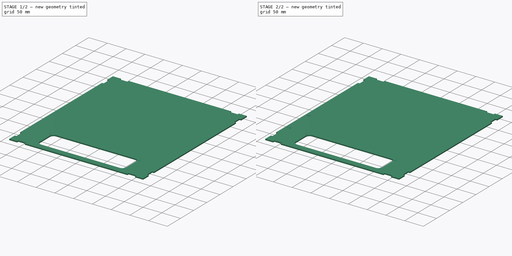
[diagram: build sequence overview — one tinted view per stage of 2, left to right]
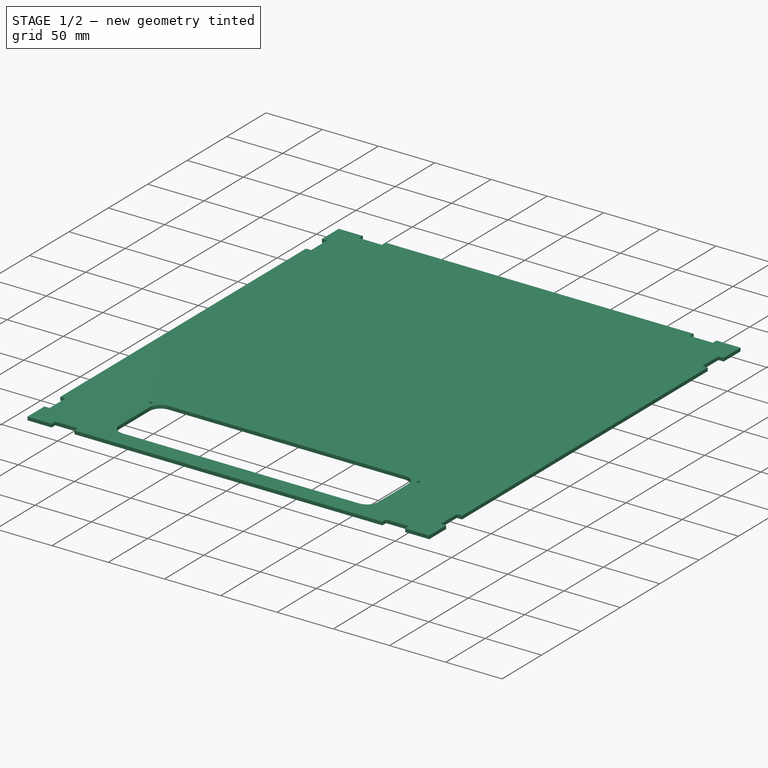
[diagram: stage 1 of 2 — iso view after this stage's code; geometry added in this stage tinted green]
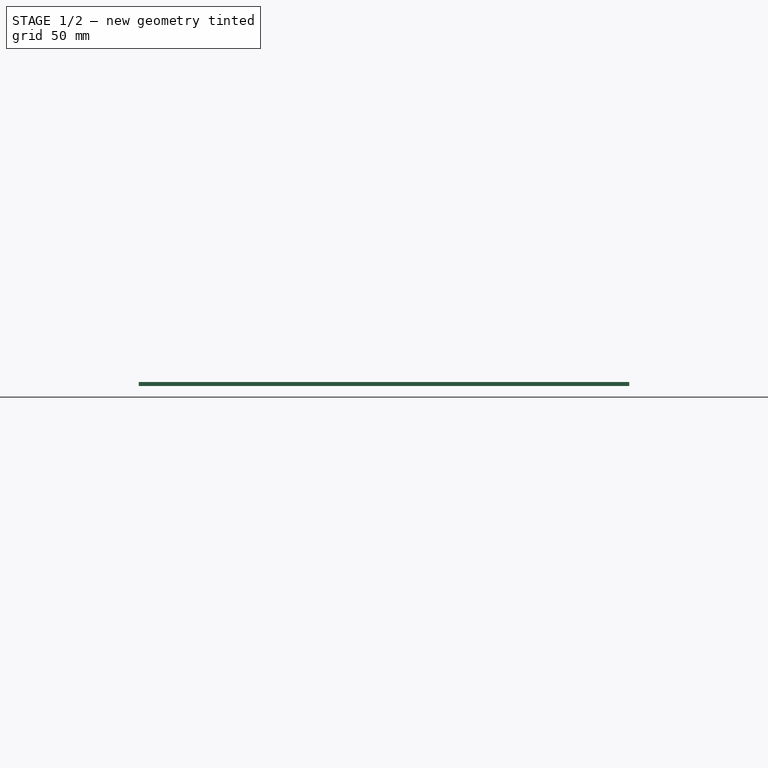
[diagram: stage 1 of 2 — front view after this stage's code; geometry added in this stage tinted green]
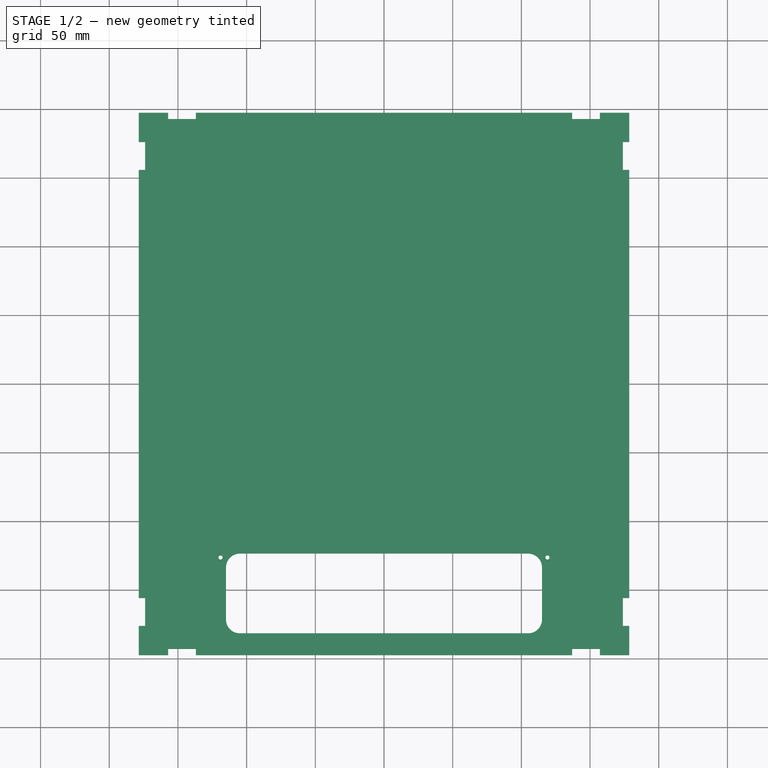
[diagram: stage 1 of 2 — top view after this stage's code; geometry added in this stage tinted green]
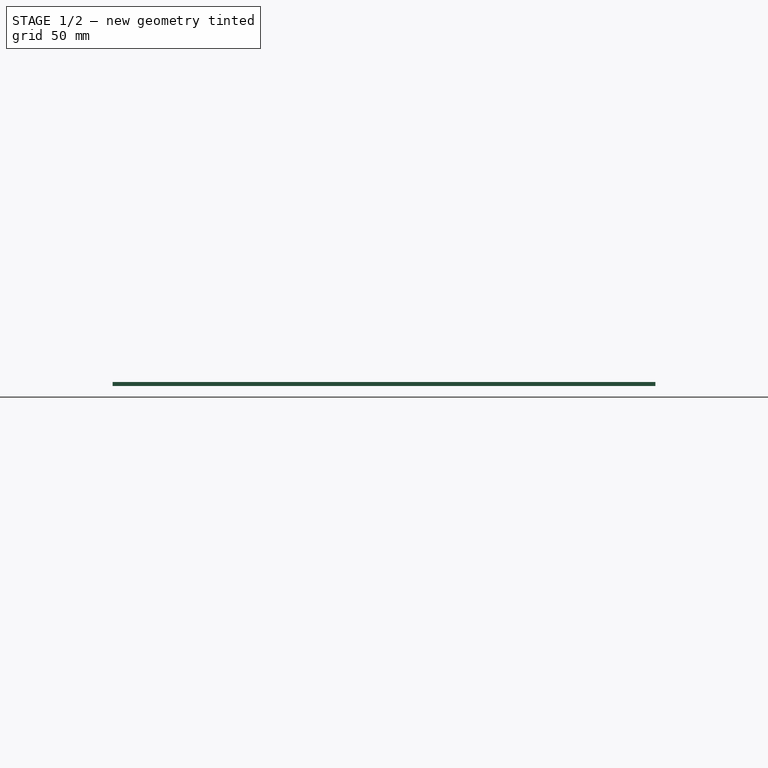
[diagram: stage 1 of 2 — right view after this stage's code; geometry added in this stage tinted green]
FCSTD DOCUMENT  (FreeCAD 0.19R24366 (Git))
Label: ri-cover-new
License: All rights reserved
LicenseURL: http://en.wikipedia.org/wiki/All_rights_reserved
objects: Sketcher::SketchObject×3, PartDesign::Pad×1, PartDesign::Pocket×1, PartDesign::Body×1, Part::Part2DObjectPython×1
note: 9 computed .brp shape members not serialized (recipe doc carries the construction recipe); baked Part::Feature solids carry a one-line shape summary decoded from their .brp

FEATURE [Sketcher::SketchObject] Sketch
  FullyConstrained = true
  MapMode = 5
  Support = -> [XY_Plane]
  sketch-geometry (51):
    g0: LineSegment StartX=-173.9 StartY=176.1 StartZ=0 EndX=-178.5 EndY=176.1 EndZ=0
    g1: LineSegment StartX=-178.5 StartY=176.1 StartZ=0 EndX=-178.5 EndY=197.5 EndZ=0
    g2: LineSegment StartX=-178.5 StartY=197.5 StartZ=0 EndX=-157.1 EndY=197.5 EndZ=0
    g3: LineSegment StartX=-157.1 StartY=197.5 StartZ=0 EndX=-157.1 EndY=192.9 EndZ=0
    g4: LineSegment StartX=-157.1 StartY=192.9 StartZ=0 EndX=-136.9 EndY=192.9 EndZ=0
    g5: LineSegment StartX=-136.9 StartY=192.9 StartZ=0 EndX=-136.9 EndY=197.5 EndZ=0
    g6: LineSegment StartX=-136.9 StartY=197.5 StartZ=0 EndX=136.9 EndY=197.5 EndZ=0
    g7: LineSegment StartX=136.9 StartY=197.5 StartZ=0 EndX=136.9 EndY=192.9 EndZ=0
    g8: LineSegment StartX=136.9 StartY=192.9 StartZ=0 EndX=157.1 EndY=192.9 EndZ=0
    g9: LineSegment StartX=157.1 StartY=192.9 StartZ=0 EndX=157.1 EndY=197.5 EndZ=0
    g10: LineSegment StartX=157.1 StartY=197.5 StartZ=0 EndX=178.5 EndY=197.5 EndZ=0
    g11: LineSegment StartX=178.5 StartY=197.5 StartZ=0 EndX=178.5 EndY=176.1 EndZ=0
    g12: LineSegment StartX=178.5 StartY=176.1 StartZ=0 EndX=173.9 EndY=176.1 EndZ=0
    g13: LineSegment StartX=173.9 StartY=176.1 StartZ=0 EndX=173.9 EndY=155.9 EndZ=0
    g14: LineSegment StartX=173.9 StartY=155.9 StartZ=0 EndX=178.5 EndY=155.9 EndZ=0
    g15: LineSegment StartX=178.5 StartY=155.9 StartZ=0 EndX=178.5 EndY=-155.9 EndZ=0
    g16: LineSegment StartX=178.5 StartY=-155.9 StartZ=0 EndX=173.9 EndY=-155.9 EndZ=0
    g17: LineSegment StartX=173.9 StartY=-155.9 StartZ=0 EndX=173.9 EndY=-176.1 EndZ=0
    g18: LineSegment StartX=173.9 StartY=-176.1 StartZ=0 EndX=178.5 EndY=-176.1 EndZ=0
    g19: LineSegment StartX=178.5 StartY=-176.1 StartZ=0 EndX=178.5 EndY=-197.5 EndZ=0
    g20: LineSegment StartX=178.5 StartY=-197.5 StartZ=0 EndX=157.1 EndY=-197.5 EndZ=0
    g21: LineSegment StartX=157.1 StartY=-197.5 StartZ=0 EndX=157.1 EndY=-192.9 EndZ=0
    g22: LineSegment StartX=157.1 StartY=-192.9 StartZ=0 EndX=136.9 EndY=-192.9 EndZ=0
    g23: LineSegment StartX=136.9 StartY=-192.9 StartZ=0 EndX=136.9 EndY=-197.5 EndZ=0
    g24: LineSegment StartX=136.9 StartY=-197.5 StartZ=0 EndX=-136.9 EndY=-197.5 EndZ=0
    g25: LineSegment StartX=-136.9 StartY=-197.5 StartZ=0 EndX=-136.9 EndY=-192.9 EndZ=0
    g26: LineSegment StartX=-136.9 StartY=-192.9 StartZ=0 EndX=-157.1 EndY=-192.9 EndZ=0
    g27: LineSegment StartX=-157.1 StartY=-192.9 StartZ=0 EndX=-157.1 EndY=-197.5 EndZ=0
    g28: LineSegment StartX=-157.1 StartY=-197.5 StartZ=0 EndX=-178.5 EndY=-197.5 EndZ=0
    g29: LineSegment StartX=-178.5 StartY=-197.5 StartZ=0 EndX=-178.5 EndY=-176.1 EndZ=0
    g30: LineSegment StartX=-178.5 StartY=-176.1 StartZ=0 EndX=-173.9 EndY=-176.1 EndZ=0
    g31: LineSegment StartX=-173.9 StartY=-176.1 StartZ=0 EndX=-173.9 EndY=-155.9 EndZ=0
    g32: LineSegment StartX=-173.9 StartY=-155.9 StartZ=0 EndX=-178.5 EndY=-155.9 EndZ=0
    g33: LineSegment StartX=-178.5 StartY=-155.9 StartZ=0 EndX=-178.5 EndY=155.9 EndZ=0
    g34: LineSegment StartX=-178.5 StartY=155.9 StartZ=0 EndX=-173.9 EndY=155.9 EndZ=0
    g35: LineSegment StartX=-173.9 StartY=155.9 StartZ=0 EndX=-173.9 EndY=176.1 EndZ=0
    g36: LineSegment StartX=-105 StartY=-123.5 StartZ=0 EndX=105 EndY=-123.5 EndZ=0
    g37: LineSegment StartX=115 StartY=-133.5 StartZ=0 EndX=115 EndY=-171.5 EndZ=0
    g38: LineSegment StartX=105 StartY=-181.5 StartZ=0 EndX=-105 EndY=-181.5 EndZ=0
    g39: LineSegment StartX=-115 StartY=-171.5 StartZ=0 EndX=-115 EndY=-133.5 EndZ=0
    g40: Circle CenterX=-119 CenterY=-126.3 CenterZ=0 NormalX=0 NormalY=0 NormalZ=1 AngleXU=0 Radius=1.5
    g41: Circle CenterX=119 CenterY=-126.3 CenterZ=0 NormalX=0 NormalY=0 NormalZ=1 AngleXU=0 Radius=1.5
    g42: ArcOfCircle CenterX=105 CenterY=-133.5 CenterZ=0 NormalX=0 NormalY=0 NormalZ=1 AngleXU=0 Radius=10 StartAngle=7e-16 EndAngle=1.5708
    g43: GeomPoint X=115 Y=-123.5 Z=0
    g44: ArcOfCircle CenterX=105 CenterY=-171.5 CenterZ=0 NormalX=0 NormalY=0 NormalZ=1 AngleXU=0 Radius=10 StartAngle=4.71239 EndAngle=6.28319
    g45: GeomPoint X=115 Y=-181.5 Z=0
    g46: ArcOfCircle CenterX=-105 CenterY=-171.5 CenterZ=0 NormalX=0 NormalY=0 NormalZ=1 AngleXU=0 Radius=10 StartAngle=3.14159 EndAngle=4.71239
    g47: GeomPoint X=-115 Y=-181.5 Z=0
    g48: ArcOfCircle CenterX=-105 CenterY=-133.5 CenterZ=0 NormalX=0 NormalY=0 NormalZ=1 AngleXU=0 Radius=10 StartAngle=1.5708 EndAngle=3.14159
    g49: GeomPoint X=-115 Y=-123.5 Z=0
    g50: GeomPoint X=-3.84e-14 Y=-181.5 Z=0
  constraints (142):
    c: Horizontal(g0)
    c: Coincident(g0,g1)
    c: Vertical(g1)
    c: Coincident(g1,g2)
    c: Horizontal(g2)
    c: Coincident(g2,g3)
    c: Vertical(g3)
    c: Coincident(g3,g4)
    c: Horizontal(g4)
    c: Coincident(g4,g5)
    c: Vertical(g5)
    c: Coincident(g5,g6)
    c: Horizontal(g6)
    c: Coincident(g6,g7)
    c: Vertical(g7)
    c: Coincident(g7,g8)
    c: Horizontal(g8)
    c: Coincident(g8,g9)
    c: Vertical(g9)
    c: Coincident(g9,g10)
    c: Horizontal(g10)
    c: Coincident(g10,g11)
    c: Vertical(g11)
    c: Coincident(g11,g12)
    c: Horizontal(g12)
    c: Coincident(g12,g13)
    c: Vertical(g13)
    c: Coincident(g13,g14)
    c: Horizontal(g14)
    c: Coincident(g14,g15)
    c: Vertical(g15)
    c: Coincident(g15,g16)
    c: Horizontal(g16)
    c: Coincident(g16,g17)
    c: Vertical(g17)
    c: Coincident(g17,g18)
    c: Horizontal(g18)
    c: Coincident(g18,g19)
    c: Vertical(g19)
    c: Coincident(g19,g20)
    c: Horizontal(g20)
    c: Coincident(g20,g21)
    c: Vertical(g21)
    c: Coincident(g21,g22)
    c: Horizontal(g22)
    c: Coincident(g22,g23)
    c: Vertical(g23)
    c: Coincident(g23,g24)
    c: Horizontal(g24)
    c: Coincident(g24,g25)
    c: Coincident(g25,g26)
    c: Horizontal(g26)
    c: Coincident(g26,g27)
    c: Vertical(g27)
    c: Coincident(g27,g28)
    c: Horizontal(g28)
    c: Coincident(g28,g29)
    c: Vertical(g29)
    c: Coincident(g29,g30)
    c: Horizontal(g30)
    c: Coincident(g30,g31)
    c: Vertical(g31)
    c: Coincident(g31,g32)
    c: Horizontal(g32)
    c: Coincident(g32,g33)
    c: Vertical(g33)
    c: Coincident(g33,g34)
    c: Horizontal(g34)
    c: Coincident(g34,g35)
    c: Coincident(g35,g0)
    c: Vertical(g35)
    c: Vertical(g25)
    c: Equal(g32,g30)
    c: Equal(g30,g27)
    c: Equal(g27,g25)
    c: Equal(g25,g23)
    c: Equal(g23,g21)
    c: Equal(g21,g18)
    c: Equal(g18,g16)
    c: Equal(g16,g14)
    c: Equal(g14,g12)
    c: Equal(g12,g9)
    c: Equal(g9,g7)
    c: Equal(g7,g5)
    c: Equal(g5,g3)
    c: Equal(g3,g0)
    c: Equal(g0,g34)
    c: Equal(g35,g4)
    c: Equal(g4,g8)
    c: Equal(g8,g13)
    c: Equal(g13,g17)
    c: Equal(g17,g22)
    c: Equal(g22,g26)
    c: Equal(g26,g31)
    c: DistanceX(g2,g2) = 21.4
    c: Equal(g1,g2)
    c: Equal(g2,g10)
    c: Equal(g10,g11)
    c: Equal(g11,g19)
    c: Equal(g19,g20)
    c: Equal(g20,g28)
    c: Equal(g28,g29)
    c: DistanceY(g3,g3) = 4.6
    c: DistanceX(g4,g4) = 20.2
    c: DistanceX(g1,g10) = 357
    c: DistanceY(g28,g1) = 395
    c: Symmetric(g10,g28,g-1)
    c: Horizontal(g36)
    c: Horizontal(g38)
    c: Vertical(g37)
    c: Vertical(g39)
    c: Equal(g40,g41)
    c: Diameter(g40) = 3
    c: Horizontal(g41,g40)
    c: DistanceX(g49,g43) = 230
    c: DistanceY(g45,g43) = 58
    c: PointOnObject(g43,g36)
    c: PointOnObject(g43,g37)
    c: Tangent(g36,g42) = 1.5708
    c: Tangent(g37,g42) = 1.5708
    c: PointOnObject(g45,g37)
    c: PointOnObject(g45,g38)
    c: Tangent(g37,g44) = 1.5708
    c: Tangent(g38,g44) = 1.5708
    c: PointOnObject(g47,g38)
    c: PointOnObject(g47,g39)
    c: Tangent(g38,g46) = 1.5708
    c: Tangent(g39,g46) = 1.5708
    c: PointOnObject(g49,g36)
    c: PointOnObject(g49,g39)
    c: Tangent(g36,g48) = 1.5708
    c: Tangent(g39,g48) = 1.5708
    c: Equal(g46,g44)
    c: Equal(g44,g42)
    c: Equal(g42,g48)
    c: Radius(g48) = 10
    c: Symmetric(g47,g45,g50)
    c: DistanceX(g32,g50) = 178.5
    c: DistanceY(g25,g50) = 11.4
    c: DistanceY(g40,g49) = 2.8
    c: DistanceX(g40,g49) = 4
    c: DistanceX(g43,g41) = 4
FEATURE [PartDesign::Pad] Pad
  Direction = (1,1,1)
  Length = 3
  Length2 = 100
  Profile = -> Sketch
  Refine = true
  Type = 0
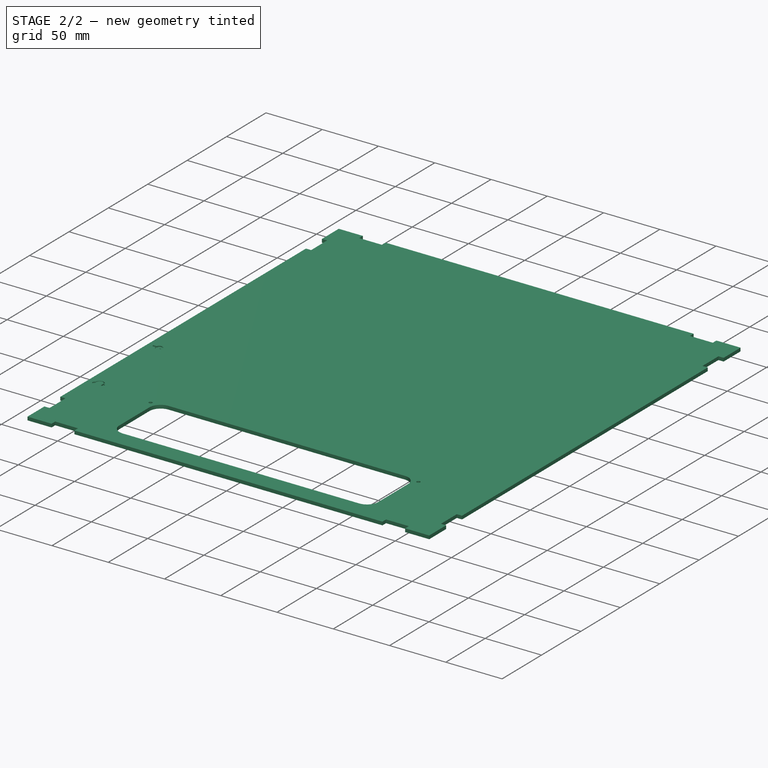
[diagram: stage 2 of 2 — iso view after this stage's code; geometry added in this stage tinted green]
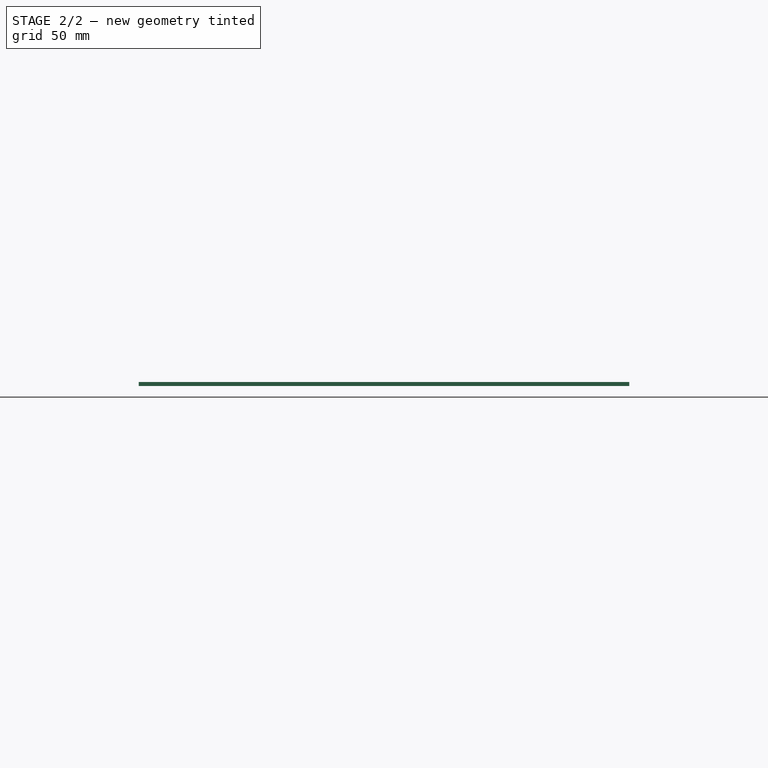
[diagram: stage 2 of 2 — front view after this stage's code; geometry added in this stage tinted green]
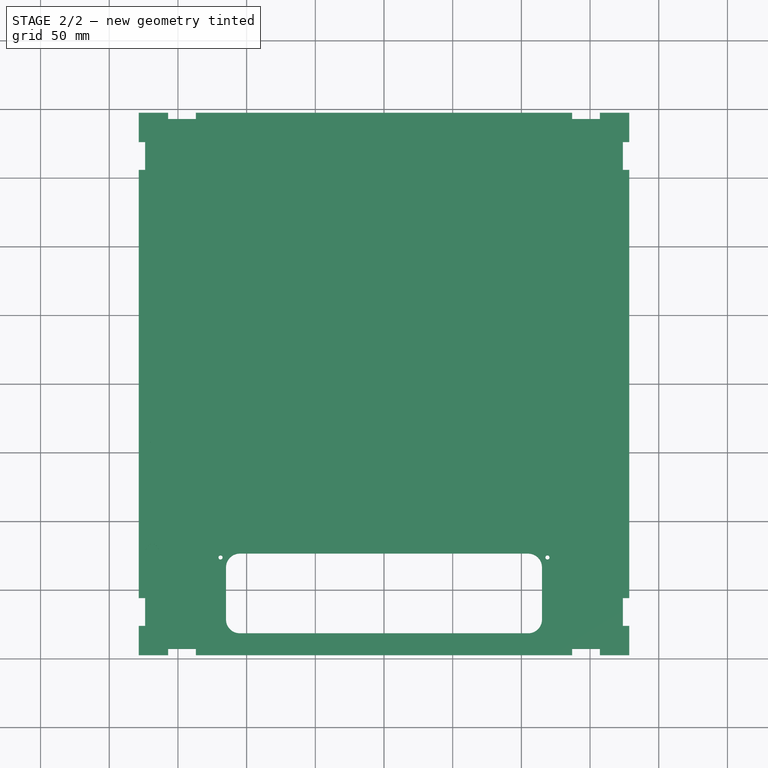
[diagram: stage 2 of 2 — top view after this stage's code; geometry added in this stage tinted green]
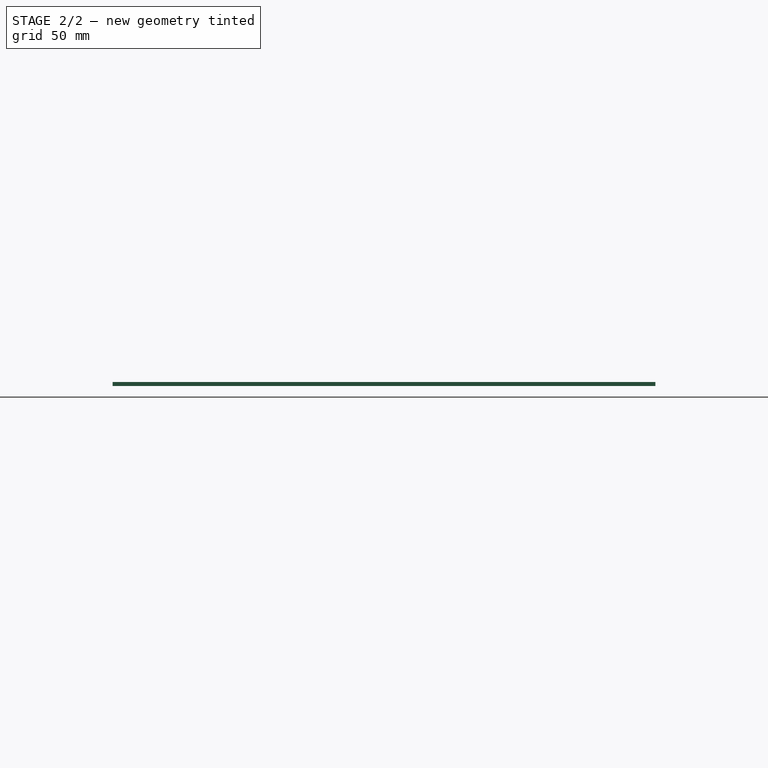
[diagram: stage 2 of 2 — right view after this stage's code; geometry added in this stage tinted green]
FEATURE [Sketcher::SketchObject] Sketch001
  ExternalGeometry = -> [Pad]
  FullyConstrained = true
  MapMode = 5
  Placement = pos=(0,0,3) rot=(0,0,1;0rad)
  Support = -> [Pad]
  sketch-geometry (27):
    g0: LineSegment StartX=-170.9 StartY=-45.75 StartZ=0 EndX=-173.9 EndY=-45.75 EndZ=0
    g1: LineSegment StartX=-173.9 StartY=-45.75 StartZ=0 EndX=-173.9 EndY=-44.25 EndZ=0
    g2: LineSegment StartX=-173.9 StartY=-44.25 StartZ=0 EndX=-170.9 EndY=-44.25 EndZ=0
    g3: LineSegment StartX=-168.65 StartY=-42 StartZ=0 EndX=-167.15 EndY=-42 EndZ=0
    g4: LineSegment StartX=-167.15 StartY=-42 StartZ=0 EndX=-167.15 EndY=-43.125 EndZ=0
    g5: LineSegment StartX=-167.15 StartY=-43.125 StartZ=0 EndX=-165.65 EndY=-43.125 EndZ=0
    g6: LineSegment StartX=-165.65 StartY=-43.125 StartZ=0 EndX=-165.65 EndY=-43.875 EndZ=0
    g7: LineSegment StartX=-165.65 StartY=-43.875 StartZ=0 EndX=-167.15 EndY=-43.875 EndZ=0
    g8: LineSegment StartX=-167.15 StartY=-43.875 StartZ=0 EndX=-167.15 EndY=-46.125 EndZ=0
    g9: LineSegment StartX=-167.15 StartY=-46.125 StartZ=0 EndX=-165.65 EndY=-46.125 EndZ=0
    g10: LineSegment StartX=-165.65 StartY=-46.125 StartZ=0 EndX=-165.65 EndY=-46.875 EndZ=0
    g11: LineSegment StartX=-165.65 StartY=-46.875 StartZ=0 EndX=-167.15 EndY=-46.875 EndZ=0
    g12: LineSegment StartX=-167.15 StartY=-46.875 StartZ=0 EndX=-167.15 EndY=-48 EndZ=0
    g13: LineSegment StartX=-167.15 StartY=-48 StartZ=0 EndX=-168.65 EndY=-48 EndZ=0
    g14: ArcOfCircle CenterX=-168.65 CenterY=-44.25 CenterZ=0 NormalX=0 NormalY=0 NormalZ=1 AngleXU=0 Radius=2.25 StartAngle=1.5708 EndAngle=3.14159
    g15: ArcOfCircle CenterX=-168.65 CenterY=-45.75 CenterZ=0 NormalX=0 NormalY=0 NormalZ=1 AngleXU=0 Radius=2.25 StartAngle=3.14159 EndAngle=4.71239
    g16: LineSegment StartX=-170.9 StartY=-44.25 StartZ=0 EndX=-170.9 EndY=-45.75 EndZ=0
    g17: GeomPoint X=-173.9 Y=-45 Z=0
    g18: ArcOfCircle CenterX=-168.65 CenterY=-120 CenterZ=0 NormalX=0 NormalY=0 NormalZ=1 AngleXU=0 Radius=3 StartAngle=0 EndAngle=3.14159
    g19: ArcOfCircle CenterX=-168.65 CenterY=-120 CenterZ=0 NormalX=0 NormalY=0 NormalZ=1 AngleXU=0 Radius=3.75 StartAngle=7e-16 EndAngle=3.14159
    g20: ArcOfCircle CenterX=-172.4 CenterY=-121.5 CenterZ=0 NormalX=0 NormalY=0 NormalZ=1 AngleXU=0 Radius=1.5 StartAngle=1.5708 EndAngle=4.71239
    g21: ArcOfCircle CenterX=-164.9 CenterY=-121.5 CenterZ=0 NormalX=0 NormalY=0 NormalZ=1 AngleXU=0 Radius=1.5 StartAngle=4.71239 EndAngle=7.85398
    g22: LineSegment StartX=-171.65 StartY=-120 StartZ=0 EndX=-171.65 EndY=-123 EndZ=0
    g23: LineSegment StartX=-171.65 StartY=-123 StartZ=0 EndX=-172.4 EndY=-123 EndZ=0
    g24: LineSegment StartX=-165.65 StartY=-120 StartZ=0 EndX=-165.65 EndY=-123 EndZ=0
    g25: LineSegment StartX=-165.65 StartY=-123 StartZ=0 EndX=-164.9 EndY=-123 EndZ=0
    g26: GeomPoint X=-173.9 Y=-121.5 Z=0
  constraints (78):
    c: Horizontal(g0)
    c: Coincident(g0,g1)
    c: Vertical(g1)
    c: Coincident(g1,g2)
    c: Horizontal(g2)
    c: Horizontal(g3)
    c: Coincident(g3,g4)
    c: Vertical(g4)
    c: Coincident(g4,g5)
    c: Horizontal(g5)
    c: Coincident(g5,g6)
    c: Vertical(g6)
    c: Coincident(g6,g7)
    c: Horizontal(g7)
    c: Coincident(g7,g8)
    c: Vertical(g8)
    c: Coincident(g8,g9)
    c: Horizontal(g9)
    c: Coincident(g9,g10)
    c: Vertical(g10)
    c: Coincident(g10,g11)
    c: Horizontal(g11)
    c: Coincident(g11,g12)
    c: Vertical(g12)
    c: Coincident(g12,g13)
    c: Horizontal(g13)
    c: Equal(g3,g13)
    c: Equal(g2,g0)
    c: Equal(g1,g3)
    c: Equal(g6,g10)
    c: Equal(g5,g7)
    c: Equal(g7,g9)
    c: Equal(g9,g11)
    c: Equal(g4,g12)
    c: Coincident(g14,g2)
    c: Coincident(g15,g0)
    c: Equal(g14,g15)
    c: Tangent(g15,g13) = 1.5708
    c: Tangent(g14,g3) = 1.5708
    c: Coincident(g16,g2)
    c: Coincident(g16,g0)
    c: Tangent(g14,g16)
    c: DistanceY(g1,g1) = 1.5
    c: DistanceY(g10,g10) = 0.75
    c: DistanceY(g8,g8) = 2.25
    c: DistanceY(g12,g3) = 6
    c: DistanceX(g5,g5) = 1.5
    c: DistanceX(g2,g2) = 3
    c: Symmetric(g1,g0,g17)
    c: DistanceY(g-3,g17) = 152.5
    c: DistanceX(g-3,g17) = 4.6
    c: Coincident(g19,g18)
    c: Horizontal(g19,g18)
    c: Horizontal(g18,g18)
    c: Horizontal(g18,g18)
    c: Horizontal(g18,g19)
    c: DistanceX(g18,g19) = 0.75
    c: Radius(g18) = 3
    c: Coincident(g20,g19)
    c: Coincident(g21,g19)
    c: Vertical(g19,g21)
    c: Vertical(g21,g21)
    c: Vertical(g19,g20)
    c: Vertical(g20,g20)
    c: Equal(g20,g21)
    c: Radius(g20) = 1.5
    c: Tangent(g18,g22) = -1.5708
    c: Coincident(g22,g23)
    c: Coincident(g23,g20)
    c: Horizontal(g23)
    c: Tangent(g18,g24) = 1.5708
    c: Coincident(g25,g24)
    c: Coincident(g25,g21)
    c: Horizontal(g25)
    c: DistanceY(g-3,g18) = 77.5
    c: PointOnObject(g26,g20)
    c: Horizontal(g26,g20)
    c: DistanceX(g-3,g26) = 4.6
FEATURE [PartDesign::Pocket] Pocket
  BaseFeature = -> Pad
  Length = 1
  Length2 = 100
  Profile = -> Sketch001
  Refine = true
  Type = 0
FEATURE [PartDesign::Body] Body
  Group = -> [Sketch,Pad,Sketch001,Pocket]
  Origin = -> Origin
  Tip = -> Pocket
FEATURE [Part::Part2DObjectPython] Shape2DView  # Draft 2D object (typed FeaturePython)
  Base = -> Pocket
  FaceNumbers = [4]
  FuseArch = false
  HiddenLines = false
  InPlace = true
  Projection = (0,0,1)
  ProjectionMode = 0
  SegmentLength = 0.05
  Tessellation = false
  VisibleOnly = false
FEATURE [Sketcher::SketchObject] Sketch002
  FullyConstrained = false
  sketch-geometry (70):
    g0: LineSegment StartX=-173.9 StartY=176.1 StartZ=0 EndX=-178.5 EndY=176.1 EndZ=0
    g1: LineSegment StartX=-173.9 StartY=155.9 StartZ=0 EndX=-173.9 EndY=176.1 EndZ=0
    g2: LineSegment StartX=-178.5 StartY=176.1 StartZ=0 EndX=-178.5 EndY=197.5 EndZ=0
    g3: LineSegment StartX=-178.5 StartY=155.9 StartZ=0 EndX=-173.9 EndY=155.9 EndZ=0
    g4: LineSegment StartX=-178.5 StartY=197.5 StartZ=0 EndX=-157.1 EndY=197.5 EndZ=0
    g5: LineSegment StartX=-178.5 StartY=-155.9 StartZ=0 EndX=-178.5 EndY=155.9 EndZ=0
    g6: LineSegment StartX=-157.1 StartY=197.5 StartZ=0 EndX=-157.1 EndY=192.9 EndZ=0
    g7: LineSegment StartX=-173.9 StartY=-155.9 StartZ=0 EndX=-178.5 EndY=-155.9 EndZ=0
    g8: LineSegment StartX=-157.1 StartY=192.9 StartZ=0 EndX=-136.9 EndY=192.9 EndZ=0
    g9: LineSegment StartX=-173.9 StartY=-176.1 StartZ=0 EndX=-173.9 EndY=-155.9 EndZ=0
    g10: LineSegment StartX=-136.9 StartY=192.9 StartZ=0 EndX=-136.9 EndY=197.5 EndZ=0
    g11: LineSegment StartX=-178.5 StartY=-176.1 StartZ=0 EndX=-173.9 EndY=-176.1 EndZ=0
    g12: LineSegment StartX=-136.9 StartY=197.5 StartZ=0 EndX=136.9 EndY=197.5 EndZ=0
    g13: LineSegment StartX=-178.5 StartY=-197.5 StartZ=0 EndX=-178.5 EndY=-176.1 EndZ=0
    g14: LineSegment StartX=136.9 StartY=197.5 StartZ=0 EndX=136.9 EndY=192.9 EndZ=0
    g15: LineSegment StartX=-157.1 StartY=-197.5 StartZ=0 EndX=-178.5 EndY=-197.5 EndZ=0
    g16: LineSegment StartX=136.9 StartY=192.9 StartZ=0 EndX=157.1 EndY=192.9 EndZ=0
    g17: LineSegment StartX=-157.1 StartY=-192.9 StartZ=0 EndX=-157.1 EndY=-197.5 EndZ=0
    g18: LineSegment StartX=157.1 StartY=192.9 StartZ=0 EndX=157.1 EndY=197.5 EndZ=0
    g19: LineSegment StartX=-136.9 StartY=-192.9 StartZ=0 EndX=-157.1 EndY=-192.9 EndZ=0
    g20: LineSegment StartX=157.1 StartY=197.5 StartZ=0 EndX=178.5 EndY=197.5 EndZ=0
    g21: LineSegment StartX=-136.9 StartY=-197.5 StartZ=0 EndX=-136.9 EndY=-192.9 EndZ=0
    g22: LineSegment StartX=178.5 StartY=197.5 StartZ=0 EndX=178.5 EndY=176.1 EndZ=0
    g23: LineSegment StartX=136.9 StartY=-197.5 StartZ=0 EndX=-136.9 EndY=-197.5 EndZ=0
    g24: LineSegment StartX=178.5 StartY=176.1 StartZ=0 EndX=173.9 EndY=176.1 EndZ=0
    g25: LineSegment StartX=136.9 StartY=-192.9 StartZ=0 EndX=136.9 EndY=-197.5 EndZ=0
    g26: LineSegment StartX=173.9 StartY=176.1 StartZ=0 EndX=173.9 EndY=155.9 EndZ=0
    g27: LineSegment StartX=157.1 StartY=-192.9 StartZ=0 EndX=136.9 EndY=-192.9 EndZ=0
    g28: LineSegment StartX=173.9 StartY=155.9 StartZ=0 EndX=178.5 EndY=155.9 EndZ=0
    g29: LineSegment StartX=157.1 StartY=-197.5 StartZ=0 EndX=157.1 EndY=-192.9 EndZ=0
    g30: LineSegment StartX=178.5 StartY=155.9 StartZ=0 EndX=178.5 EndY=-155.9 EndZ=0
    g31: LineSegment StartX=178.5 StartY=-197.5 StartZ=0 EndX=157.1 EndY=-197.5 EndZ=0
    g32: LineSegment StartX=178.5 StartY=-155.9 StartZ=0 EndX=173.9 EndY=-155.9 EndZ=0
    g33: LineSegment StartX=178.5 StartY=-176.1 StartZ=0 EndX=178.5 EndY=-197.5 EndZ=0
    g34: LineSegment StartX=173.9 StartY=-155.9 StartZ=0 EndX=173.9 EndY=-176.1 EndZ=0
    g35: LineSegment StartX=173.9 StartY=-176.1 StartZ=0 EndX=178.5 EndY=-176.1 EndZ=0
    g36: ArcOfCircle CenterX=-105 CenterY=-133.5 CenterZ=0 NormalX=0 NormalY=0 NormalZ=1 AngleXU=0 Radius=10 StartAngle=1.5708 EndAngle=3.14159
    g37: LineSegment StartX=-105 StartY=-123.5 StartZ=0 EndX=105 EndY=-123.5 EndZ=0
    g38: LineSegment StartX=-115 StartY=-171.5 StartZ=0 EndX=-115 EndY=-133.5 EndZ=0
    g39: ArcOfCircle CenterX=105 CenterY=-133.5 CenterZ=0 NormalX=0 NormalY=0 NormalZ=1 AngleXU=0 Radius=10 StartAngle=7e-16 EndAngle=1.5708
    g40: ArcOfCircle CenterX=-105 CenterY=-171.5 CenterZ=0 NormalX=0 NormalY=0 NormalZ=1 AngleXU=0 Radius=10 StartAngle=3.14159 EndAngle=4.71239
    g41: LineSegment StartX=115 StartY=-133.5 StartZ=0 EndX=115 EndY=-171.5 EndZ=0
    g42: LineSegment StartX=105 StartY=-181.5 StartZ=0 EndX=-105 EndY=-181.5 EndZ=0
    g43: ArcOfCircle CenterX=105 CenterY=-171.5 CenterZ=0 NormalX=0 NormalY=0 NormalZ=1 AngleXU=0 Radius=10 StartAngle=4.71239 EndAngle=6.28319
    g44: Circle CenterX=119 CenterY=-126.3 CenterZ=0 NormalX=0 NormalY=0 NormalZ=1 AngleXU=0 Radius=1.5
    g45: Circle CenterX=-119 CenterY=-126.3 CenterZ=0 NormalX=0 NormalY=0 NormalZ=1 AngleXU=0 Radius=1.5
    g46: ArcOfCircle CenterX=-168.65 CenterY=-120 CenterZ=0 NormalX=0 NormalY=0 NormalZ=1 AngleXU=0 Radius=3 StartAngle=0 EndAngle=3.14159
    g47: LineSegment StartX=-171.65 StartY=-120 StartZ=0 EndX=-171.65 EndY=-123 EndZ=0
    g48: LineSegment StartX=-171.65 StartY=-123 StartZ=0 EndX=-172.4 EndY=-123 EndZ=0
    g49: ArcOfCircle CenterX=-172.4 CenterY=-121.5 CenterZ=0 NormalX=0 NormalY=0 NormalZ=1 AngleXU=0 Radius=1.5 StartAngle=1.5708 EndAngle=4.71239
    g50: ArcOfCircle CenterX=-168.65 CenterY=-120 CenterZ=0 NormalX=0 NormalY=0 NormalZ=1 AngleXU=0 Radius=3.75 StartAngle=7e-16 EndAngle=3.14159
    g51: ArcOfCircle CenterX=-164.9 CenterY=-121.5 CenterZ=0 NormalX=0 NormalY=0 NormalZ=1 AngleXU=0 Radius=1.5 StartAngle=4.71239 EndAngle=7.85398
    g52: LineSegment StartX=-165.65 StartY=-123 StartZ=0 EndX=-164.9 EndY=-123 EndZ=0
    g53: LineSegment StartX=-165.65 StartY=-120 StartZ=0 EndX=-165.65 EndY=-123 EndZ=0
    g54: LineSegment StartX=-170.9 StartY=-45.75 StartZ=0 EndX=-173.9 EndY=-45.75 EndZ=0
    g55: LineSegment StartX=-173.9 StartY=-45.75 StartZ=0 EndX=-173.9 EndY=-44.25 EndZ=0
    g56: LineSegment StartX=-173.9 StartY=-44.25 StartZ=0 EndX=-170.9 EndY=-44.25 EndZ=0
    g57: ArcOfCircle CenterX=-168.65 CenterY=-44.25 CenterZ=0 NormalX=0 NormalY=0 NormalZ=1 AngleXU=0 Radius=2.25 StartAngle=1.5708 EndAngle=3.14159
    g58: LineSegment StartX=-168.65 StartY=-42 StartZ=0 EndX=-167.15 EndY=-42 EndZ=0
    g59: LineSegment StartX=-167.15 StartY=-42 StartZ=0 EndX=-167.15 EndY=-43.125 EndZ=0
    g60: LineSegment StartX=-167.15 StartY=-43.125 StartZ=0 EndX=-165.65 EndY=-43.125 EndZ=0
    g61: LineSegment StartX=-165.65 StartY=-43.125 StartZ=0 EndX=-165.65 EndY=-43.875 EndZ=0
    g62: LineSegment StartX=-165.65 StartY=-43.875 StartZ=0 EndX=-167.15 EndY=-43.875 EndZ=0
    g63: LineSegment StartX=-167.15 StartY=-43.875 StartZ=0 EndX=-167.15 EndY=-46.125 EndZ=0
    g64: LineSegment StartX=-167.15 StartY=-46.125 StartZ=0 EndX=-165.65 EndY=-46.125 EndZ=0
    g65: LineSegment StartX=-165.65 StartY=-46.125 StartZ=0 EndX=-165.65 EndY=-46.875 EndZ=0
    g66: LineSegment StartX=-165.65 StartY=-46.875 StartZ=0 EndX=-167.15 EndY=-46.875 EndZ=0
    g67: LineSegment StartX=-167.15 StartY=-46.875 StartZ=0 EndX=-167.15 EndY=-48 EndZ=0
    g68: LineSegment StartX=-167.15 StartY=-48 StartZ=0 EndX=-168.65 EndY=-48 EndZ=0
    g69: ArcOfCircle CenterX=-168.65 CenterY=-45.75 CenterZ=0 NormalX=0 NormalY=0 NormalZ=1 AngleXU=0 Radius=2.25 StartAngle=3.14159 EndAngle=4.71239
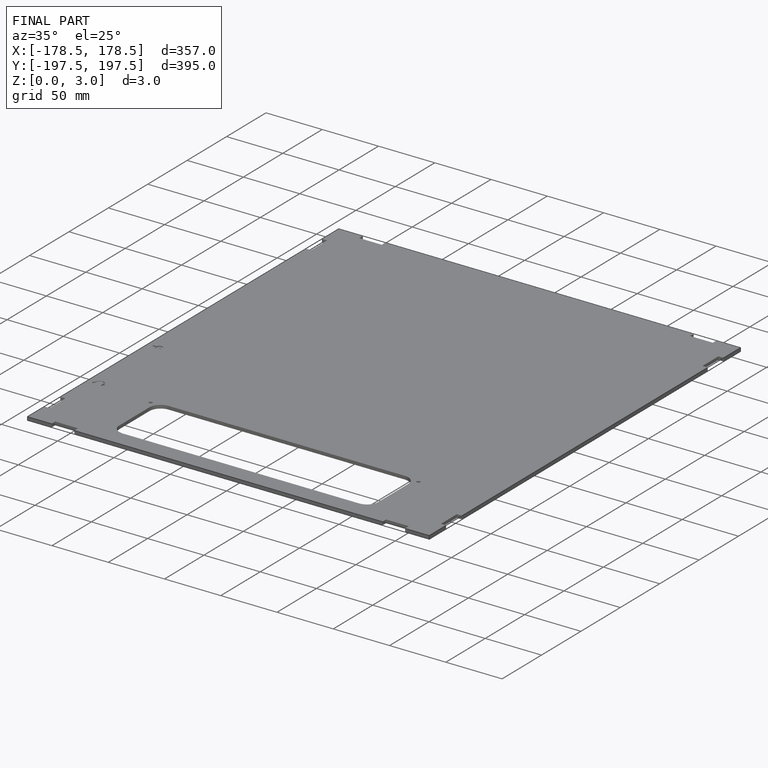
[diagram: finished part — iso view with bounding-box wireframe]
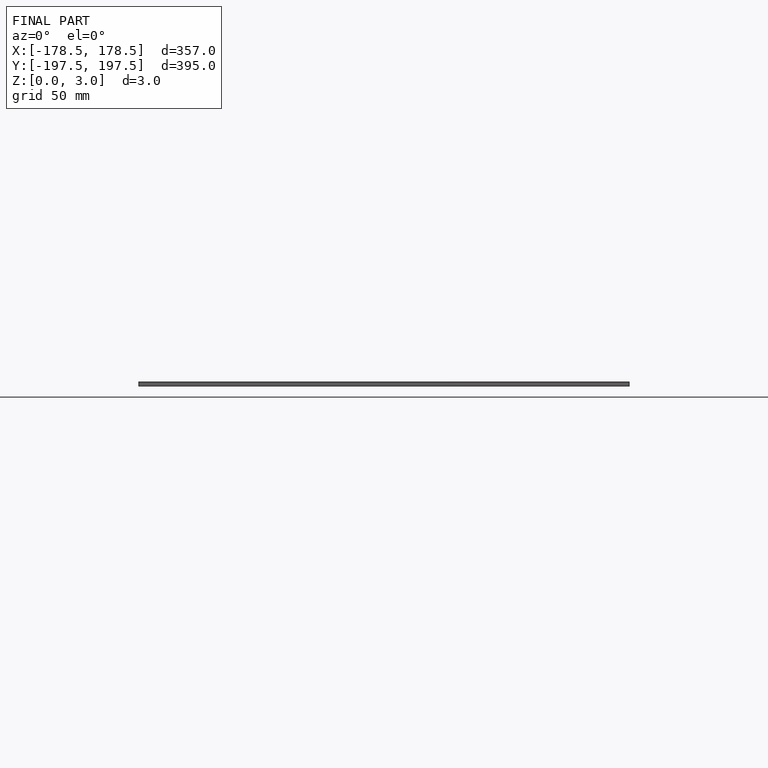
[diagram: finished part — front view with bounding-box wireframe]
